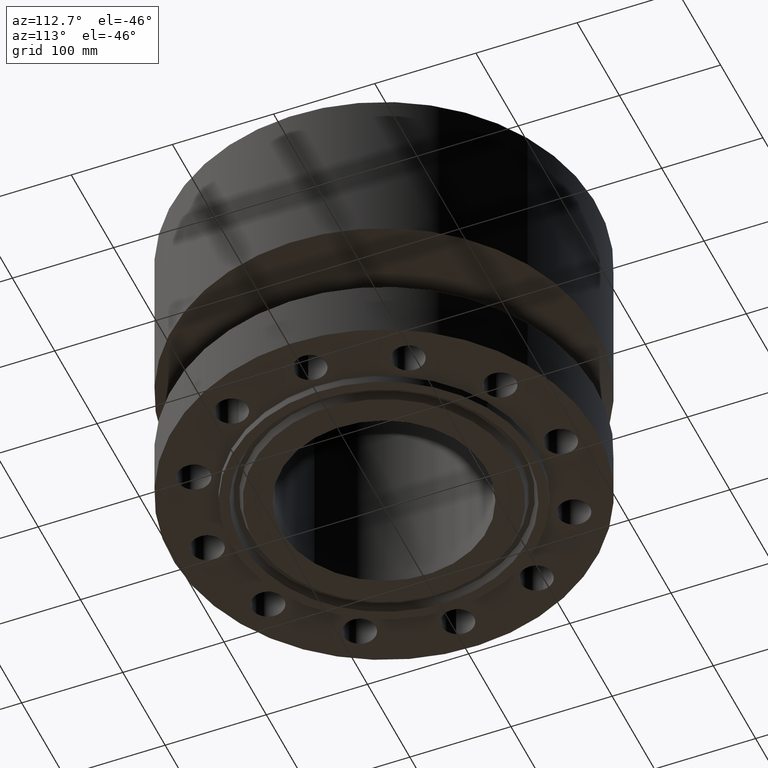
[diagram: clean part render]
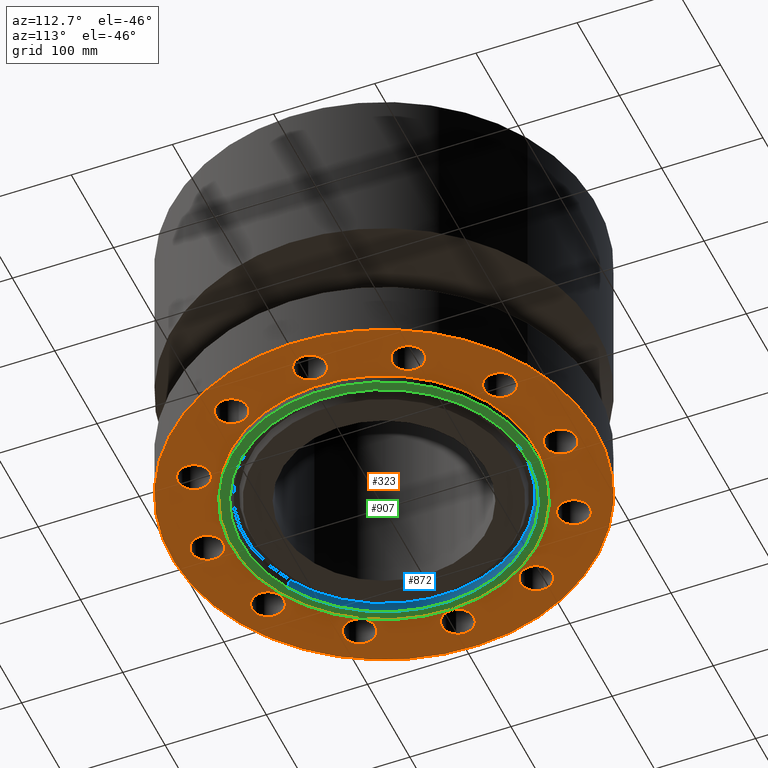
[diagram: same view with three faces highlighted in distinct colors, each labeled with its STEP entity id]
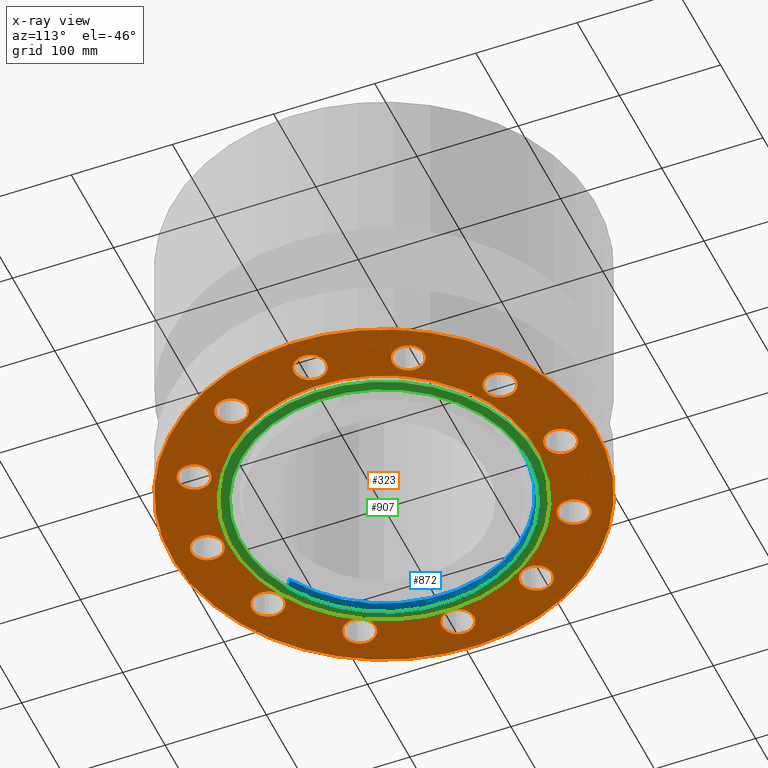
[diagram: x-ray of the same camera — body ghosted, the three highlighted faces saturated]
A machine part, auxiliary view with three faces highlighted in distinct colors.
The next image is the same camera in x-ray (body ghosted, the three faces saturated) — at least one of them is partly hidden behind the body in this view.
Their STEP definitions:

[orange] entity #323 — the highlighted planar face has unit normal (0, 0, -1).
#51=AXIS2_PLACEMENT_3D('Circle Axis2P3D',#49,#50,$) ;
#78=AXIS2_PLACEMENT_3D('Plane Axis2P3D',#75,#76,#77) ;
#82=AXIS2_PLACEMENT_3D('Circle Axis2P3D',#80,#81,$) ;
#91=AXIS2_PLACEMENT_3D('Circle Axis2P3D',#89,#90,$) ;
#100=AXIS2_PLACEMENT_3D('Circle Axis2P3D',#98,#99,$) ;
#109=AXIS2_PLACEMENT_3D('Circle Axis2P3D',#107,#108,$) ;
#118=AXIS2_PLACEMENT_3D('Circle Axis2P3D',#116,#117,$) ;
#127=AXIS2_PLACEMENT_3D('Circle Axis2P3D',#125,#126,$) ;
#136=AXIS2_PLACEMENT_3D('Circle Axis2P3D',#134,#135,$) ;
#145=AXIS2_PLACEMENT_3D('Circle Axis2P3D',#143,#144,$) ;
#154=AXIS2_PLACEMENT_3D('Circle Axis2P3D',#152,#153,$) ;
#163=AXIS2_PLACEMENT_3D('Circle Axis2P3D',#161,#162,$) ;
#172=AXIS2_PLACEMENT_3D('Circle Axis2P3D',#170,#171,$) ;
#181=AXIS2_PLACEMENT_3D('Circle Axis2P3D',#179,#180,$) ;
#190=AXIS2_PLACEMENT_3D('Circle Axis2P3D',#188,#189,$) ;
#199=AXIS2_PLACEMENT_3D('Circle Axis2P3D',#197,#198,$) ;
#208=AXIS2_PLACEMENT_3D('Circle Axis2P3D',#206,#207,$) ;
#217=AXIS2_PLACEMENT_3D('Circle Axis2P3D',#215,#216,$) ;
#226=AXIS2_PLACEMENT_3D('Circle Axis2P3D',#224,#225,$) ;
#235=AXIS2_PLACEMENT_3D('Circle Axis2P3D',#233,#234,$) ;
#244=AXIS2_PLACEMENT_3D('Circle Axis2P3D',#242,#243,$) ;
#253=AXIS2_PLACEMENT_3D('Circle Axis2P3D',#251,#252,$) ;
#262=AXIS2_PLACEMENT_3D('Circle Axis2P3D',#260,#261,$) ;
#271=AXIS2_PLACEMENT_3D('Circle Axis2P3D',#269,#270,$) ;
#280=AXIS2_PLACEMENT_3D('Circle Axis2P3D',#278,#279,$) ;
#289=AXIS2_PLACEMENT_3D('Circle Axis2P3D',#287,#288,$) ;
#298=AXIS2_PLACEMENT_3D('Circle Axis2P3D',#296,#297,$) ;
#307=AXIS2_PLACEMENT_3D('Circle Axis2P3D',#305,#306,$) ;
#316=AXIS2_PLACEMENT_3D('Circle Axis2P3D',#314,#315,$) ;
#46=CARTESIAN_POINT('Vertex',(7.42348910121,0.299640961629,2.2401153548E-016)) ;
#49=CARTESIAN_POINT('Axis2P3D Location',(6.87500000003,0.,0.)) ;
#53=CARTESIAN_POINT('Vertex',(6.32651089884,-0.299640961629,2.2401153548E-016)) ;
#75=CARTESIAN_POINT('Axis2P3D Location',(0.,5.23137906989,0.)) ;
#80=CARTESIAN_POINT('Axis2P3D Location',(0.,0.,0.)) ;
#84=CARTESIAN_POINT('Vertex',(-3.9552606935,-7.24005613562,1.1189649382E-015)) ;
#86=CARTESIAN_POINT('Vertex',(3.9552606935,7.24005613562,1.1189649382E-015)) ;
#89=CARTESIAN_POINT('Axis2P3D Location',(0.,0.,0.)) ;
#98=CARTESIAN_POINT('Axis2P3D Location',(6.87500000003,0.,0.)) ;
#107=CARTESIAN_POINT('Axis2P3D Location',(0.,0.,0.)) ;
#111=CARTESIAN_POINT('Vertex',(2.84658913547,5.21064646124,1.1189649382E-015)) ;
#113=CARTESIAN_POINT('Vertex',(-2.84658913547,-5.21064646124,1.1189649382E-015)) ;
#116=CARTESIAN_POINT('Axis2P3D Location',(0.,0.,0.)) ;
#125=CARTESIAN_POINT('Axis2P3D Location',(5.95392465104,-3.43750000001,0.)) ;
#129=CARTESIAN_POINT('Vertex',(6.57875062718,-3.45224786582,0.)) ;
#131=CARTESIAN_POINT('Vertex',(5.3290986749,-3.42275213421,0.)) ;
#134=CARTESIAN_POINT('Axis2P3D Location',(5.95392465104,-3.43750000001,0.)) ;
#143=CARTESIAN_POINT('Axis2P3D Location',(3.43750000001,-5.95392465104,0.)) ;
#147=CARTESIAN_POINT('Vertex',(3.97124123539,-6.27910966555,0.)) ;
#149=CARTESIAN_POINT('Vertex',(2.90375876464,-5.62873963653,0.)) ;
#152=CARTESIAN_POINT('Axis2P3D Location',(3.43750000001,-5.95392465104,0.)) ;
#161=CARTESIAN_POINT('Axis2P3D Location',(-6.99353086378E-016,-6.87500000003,0.)) ;
#165=CARTESIAN_POINT('Vertex',(0.299640961629,-7.42348910121,0.)) ;
#167=CARTESIAN_POINT('Vertex',(-0.299640961629,-6.32651089884,0.)) ;
#170=CARTESIAN_POINT('Axis2P3D Location',(-9.79094320929E-016,-6.87500000003,0.)) ;
#179=CARTESIAN_POINT('Axis2P3D Location',(-3.43750000001,-5.95392465104,0.)) ;
#183=CARTESIAN_POINT('Vertex',(-3.45224786582,-6.57875062718,0.)) ;
#185=CARTESIAN_POINT('Vertex',(-3.42275213421,-5.3290986749,0.)) ;
#188=CARTESIAN_POINT('Axis2P3D Location',(-3.43750000001,-5.95392465104,0.)) ;
#197=CARTESIAN_POINT('Axis2P3D Location',(-5.95392465104,-3.43750000001,0.)) ;
#201=CARTESIAN_POINT('Vertex',(-6.27910966555,-3.97124123539,0.)) ;
#203=CARTESIAN_POINT('Vertex',(-5.62873963653,-2.90375876464,0.)) ;
#206=CARTESIAN_POINT('Axis2P3D Location',(-5.95392465104,-3.43750000001,0.)) ;
#215=CARTESIAN_POINT('Axis2P3D Location',(-6.87500000003,-1.1189649382E-015,0.)) ;
#219=CARTESIAN_POINT('Vertex',(-7.42348910121,-0.299640961629,0.)) ;
#221=CARTESIAN_POINT('Vertex',(-6.32651089884,0.299640961629,0.)) ;
#224=CARTESIAN_POINT('Axis2P3D Location',(-6.87500000003,-1.1189649382E-015,0.)) ;
#233=CARTESIAN_POINT('Axis2P3D Location',(-5.95392465104,3.43750000001,0.)) ;
#237=CARTESIAN_POINT('Vertex',(-6.57875062718,3.45224786582,0.)) ;
#239=CARTESIAN_POINT('Vertex',(-5.3290986749,3.42275213421,0.)) ;
#242=CARTESIAN_POINT('Axis2P3D Location',(-5.95392465104,3.43750000001,0.)) ;
#251=CARTESIAN_POINT('Axis2P3D Location',(-3.43750000001,5.95392465104,0.)) ;
#255=CARTESIAN_POINT('Vertex',(-3.97124123539,6.27910966555,0.)) ;
#257=CARTESIAN_POINT('Vertex',(-2.90375876464,5.62873963653,0.)) ;
#260=CARTESIAN_POINT('Axis2P3D Location',(-3.43750000001,5.95392465104,0.)) ;
#269=CARTESIAN_POINT('Axis2P3D Location',(-1.60851209867E-015,6.87500000003,0.)) ;
#273=CARTESIAN_POINT('Vertex',(-0.299640961629,7.42348910121,0.)) ;
#275=CARTESIAN_POINT('Vertex',(0.299640961629,6.32651089884,0.)) ;
#278=CARTESIAN_POINT('Axis2P3D Location',(-1.04902962957E-015,6.87500000003,0.)) ;
#287=CARTESIAN_POINT('Axis2P3D Location',(3.43750000001,5.95392465104,0.)) ;
#291=CARTESIAN_POINT('Vertex',(3.45224786582,6.57875062718,0.)) ;
#293=CARTESIAN_POINT('Vertex',(3.42275213421,5.3290986749,0.)) ;
#296=CARTESIAN_POINT('Axis2P3D Location',(3.43750000001,5.95392465104,0.)) ;
#305=CARTESIAN_POINT('Axis2P3D Location',(5.95392465104,3.43750000001,0.)) ;
#309=CARTESIAN_POINT('Vertex',(6.27910966555,3.97124123539,0.)) ;
#311=CARTESIAN_POINT('Vertex',(5.62873963653,2.90375876464,0.)) ;
#314=CARTESIAN_POINT('Axis2P3D Location',(5.95392465104,3.43750000001,0.)) ;
#50=DIRECTION('Axis2P3D Direction',(0.,-0.,0.0393700787402)) ;
#76=DIRECTION('Axis2P3D Direction',(0.,0.,-0.0393700787402)) ;
#77=DIRECTION('Axis2P3D XDirection',(0.0393700787402,0.,0.)) ;
#81=DIRECTION('Axis2P3D Direction',(0.,0.,-0.0393700787402)) ;
#90=DIRECTION('Axis2P3D Direction',(0.,0.,-0.0393700787402)) ;
#99=DIRECTION('Axis2P3D Direction',(0.,0.,-0.0393700787402)) ;
#108=DIRECTION('Axis2P3D Direction',(0.,0.,-0.0393700787402)) ;
#117=DIRECTION('Axis2P3D Direction',(0.,0.,-0.0393700787402)) ;
#126=DIRECTION('Axis2P3D Direction',(0.,0.,-0.0393700787402)) ;
#135=DIRECTION('Axis2P3D Direction',(0.,0.,-0.0393700787402)) ;
#144=DIRECTION('Axis2P3D Direction',(0.,0.,-0.0393700787402)) ;
#153=DIRECTION('Axis2P3D Direction',(0.,0.,-0.0393700787402)) ;
#162=DIRECTION('Axis2P3D Direction',(0.,0.,-0.0393700787402)) ;
#171=DIRECTION('Axis2P3D Direction',(0.,0.,-0.0393700787402)) ;
#180=DIRECTION('Axis2P3D Direction',(0.,0.,-0.0393700787402)) ;
#189=DIRECTION('Axis2P3D Direction',(0.,0.,-0.0393700787402)) ;
#198=DIRECTION('Axis2P3D Direction',(0.,0.,-0.0393700787402)) ;
#207=DIRECTION('Axis2P3D Direction',(0.,0.,-0.0393700787402)) ;
#216=DIRECTION('Axis2P3D Direction',(0.,0.,-0.0393700787402)) ;
#225=DIRECTION('Axis2P3D Direction',(0.,0.,-0.0393700787402)) ;
#234=DIRECTION('Axis2P3D Direction',(0.,0.,-0.0393700787402)) ;
#243=DIRECTION('Axis2P3D Direction',(0.,0.,-0.0393700787402)) ;
#252=DIRECTION('Axis2P3D Direction',(0.,0.,-0.0393700787402)) ;
#261=DIRECTION('Axis2P3D Direction',(0.,0.,-0.0393700787402)) ;
#270=DIRECTION('Axis2P3D Direction',(0.,0.,-0.0393700787402)) ;
#279=DIRECTION('Axis2P3D Direction',(0.,0.,-0.0393700787402)) ;
#288=DIRECTION('Axis2P3D Direction',(0.,0.,-0.0393700787402)) ;
#297=DIRECTION('Axis2P3D Direction',(0.,0.,-0.0393700787402)) ;
#306=DIRECTION('Axis2P3D Direction',(0.,0.,-0.0393700787402)) ;
#315=DIRECTION('Axis2P3D Direction',(0.,0.,-0.0393700787402)) ;
#95=ORIENTED_EDGE('',*,*,#88,.T.) ;
#96=ORIENTED_EDGE('',*,*,#93,.T.) ;
#104=ORIENTED_EDGE('',*,*,#102,.F.) ;
#105=ORIENTED_EDGE('',*,*,#55,.F.) ;
#122=ORIENTED_EDGE('',*,*,#115,.F.) ;
#123=ORIENTED_EDGE('',*,*,#120,.F.) ;
#140=ORIENTED_EDGE('',*,*,#133,.F.) ;
#141=ORIENTED_EDGE('',*,*,#138,.F.) ;
#158=ORIENTED_EDGE('',*,*,#151,.F.) ;
#159=ORIENTED_EDGE('',*,*,#156,.F.) ;
#176=ORIENTED_EDGE('',*,*,#169,.F.) ;
#177=ORIENTED_EDGE('',*,*,#174,.F.) ;
#194=ORIENTED_EDGE('',*,*,#187,.F.) ;
#195=ORIENTED_EDGE('',*,*,#192,.F.) ;
#212=ORIENTED_EDGE('',*,*,#205,.F.) ;
#213=ORIENTED_EDGE('',*,*,#210,.F.) ;
#230=ORIENTED_EDGE('',*,*,#223,.F.) ;
#231=ORIENTED_EDGE('',*,*,#228,.F.) ;
#248=ORIENTED_EDGE('',*,*,#241,.F.) ;
#249=ORIENTED_EDGE('',*,*,#246,.F.) ;
#266=ORIENTED_EDGE('',*,*,#259,.F.) ;
#267=ORIENTED_EDGE('',*,*,#264,.F.) ;
#284=ORIENTED_EDGE('',*,*,#277,.F.) ;
#285=ORIENTED_EDGE('',*,*,#282,.F.) ;
#302=ORIENTED_EDGE('',*,*,#295,.F.) ;
#303=ORIENTED_EDGE('',*,*,#300,.F.) ;
#320=ORIENTED_EDGE('',*,*,#313,.F.) ;
#321=ORIENTED_EDGE('',*,*,#318,.F.) ;
#106=FACE_BOUND('',#103,.T.) ;
#124=FACE_BOUND('',#121,.T.) ;
#142=FACE_BOUND('',#139,.T.) ;
#160=FACE_BOUND('',#157,.T.) ;
#178=FACE_BOUND('',#175,.T.) ;
#196=FACE_BOUND('',#193,.T.) ;
#214=FACE_BOUND('',#211,.T.) ;
#232=FACE_BOUND('',#229,.T.) ;
#250=FACE_BOUND('',#247,.T.) ;
#268=FACE_BOUND('',#265,.T.) ;
#286=FACE_BOUND('',#283,.T.) ;
#304=FACE_BOUND('',#301,.T.) ;
#322=FACE_BOUND('',#319,.T.) ;
#323=ADVANCED_FACE('PartBody',(#97,#106,#124,#142,#160,#178,#196,#214,#232,#250,#268,#286,#304,#322),#79,.T.) ;
#52=CIRCLE('generated circle',#51,0.625000000002) ;
#83=CIRCLE('generated circle',#82,8.25000000003) ;
#92=CIRCLE('generated circle',#91,8.25000000003) ;
#101=CIRCLE('generated circle',#100,0.625000000002) ;
#110=CIRCLE('generated circle',#109,5.93750000002) ;
#119=CIRCLE('generated circle',#118,5.93750000002) ;
#128=CIRCLE('generated circle',#127,0.625000000002) ;
#137=CIRCLE('generated circle',#136,0.625000000002) ;
#146=CIRCLE('generated circle',#145,0.625000000002) ;
#155=CIRCLE('generated circle',#154,0.625000000002) ;
#164=CIRCLE('generated circle',#163,0.625000000002) ;
#173=CIRCLE('generated circle',#172,0.625000000003) ;
#182=CIRCLE('generated circle',#181,0.625000000002) ;
#191=CIRCLE('generated circle',#190,0.625000000002) ;
#200=CIRCLE('generated circle',#199,0.625000000002) ;
#209=CIRCLE('generated circle',#208,0.625000000002) ;
#218=CIRCLE('generated circle',#217,0.625000000002) ;
#227=CIRCLE('generated circle',#226,0.625000000002) ;
#236=CIRCLE('generated circle',#235,0.625000000002) ;
#245=CIRCLE('generated circle',#244,0.625000000002) ;
#254=CIRCLE('generated circle',#253,0.625000000003) ;
#263=CIRCLE('generated circle',#262,0.625000000003) ;
#272=CIRCLE('generated circle',#271,0.625000000002) ;
#281=CIRCLE('generated circle',#280,0.625000000003) ;
#290=CIRCLE('generated circle',#289,0.625000000002) ;
#299=CIRCLE('generated circle',#298,0.625000000002) ;
#308=CIRCLE('generated circle',#307,0.625000000003) ;
#317=CIRCLE('generated circle',#316,0.625000000003) ;
#55=EDGE_CURVE('',#47,#54,#52,.F.) ;
#88=EDGE_CURVE('',#85,#87,#83,.T.) ;
#93=EDGE_CURVE('',#87,#85,#92,.T.) ;
#102=EDGE_CURVE('',#54,#47,#101,.T.) ;
#115=EDGE_CURVE('',#112,#114,#110,.T.) ;
#120=EDGE_CURVE('',#114,#112,#119,.T.) ;
#133=EDGE_CURVE('',#130,#132,#128,.T.) ;
#138=EDGE_CURVE('',#132,#130,#137,.T.) ;
#151=EDGE_CURVE('',#148,#150,#146,.T.) ;
#156=EDGE_CURVE('',#150,#148,#155,.T.) ;
#169=EDGE_CURVE('',#166,#168,#164,.T.) ;
#174=EDGE_CURVE('',#168,#166,#173,.T.) ;
#187=EDGE_CURVE('',#184,#186,#182,.T.) ;
#192=EDGE_CURVE('',#186,#184,#191,.T.) ;
#205=EDGE_CURVE('',#202,#204,#200,.T.) ;
#210=EDGE_CURVE('',#204,#202,#209,.T.) ;
#223=EDGE_CURVE('',#220,#222,#218,.T.) ;
#228=EDGE_CURVE('',#222,#220,#227,.T.) ;
#241=EDGE_CURVE('',#238,#240,#236,.T.) ;
#246=EDGE_CURVE('',#240,#238,#245,.T.) ;
#259=EDGE_CURVE('',#256,#258,#254,.T.) ;
#264=EDGE_CURVE('',#258,#256,#263,.T.) ;
#277=EDGE_CURVE('',#274,#276,#272,.T.) ;
#282=EDGE_CURVE('',#276,#274,#281,.T.) ;
#295=EDGE_CURVE('',#292,#294,#290,.T.) ;
#300=EDGE_CURVE('',#294,#292,#299,.T.) ;
#313=EDGE_CURVE('',#310,#312,#308,.T.) ;
#318=EDGE_CURVE('',#312,#310,#317,.T.) ;
#94=EDGE_LOOP('',(#95,#96)) ;
#103=EDGE_LOOP('',(#104,#105)) ;
#121=EDGE_LOOP('',(#122,#123)) ;
#139=EDGE_LOOP('',(#140,#141)) ;
#157=EDGE_LOOP('',(#158,#159)) ;
#175=EDGE_LOOP('',(#176,#177)) ;
#193=EDGE_LOOP('',(#194,#195)) ;
#211=EDGE_LOOP('',(#212,#213)) ;
#229=EDGE_LOOP('',(#230,#231)) ;
#247=EDGE_LOOP('',(#248,#249)) ;
#265=EDGE_LOOP('',(#266,#267)) ;
#283=EDGE_LOOP('',(#284,#285)) ;
#301=EDGE_LOOP('',(#302,#303)) ;
#319=EDGE_LOOP('',(#320,#321)) ;
#97=FACE_OUTER_BOUND('',#94,.T.) ;
#79=PLANE('',#78) ;
#47=VERTEX_POINT('',#46) ;
#54=VERTEX_POINT('',#53) ;
#85=VERTEX_POINT('',#84) ;
#87=VERTEX_POINT('',#86) ;
#112=VERTEX_POINT('',#111) ;
#114=VERTEX_POINT('',#113) ;
#130=VERTEX_POINT('',#129) ;
#132=VERTEX_POINT('',#131) ;
#148=VERTEX_POINT('',#147) ;
#150=VERTEX_POINT('',#149) ;
#166=VERTEX_POINT('',#165) ;
#168=VERTEX_POINT('',#167) ;
#184=VERTEX_POINT('',#183) ;
#186=VERTEX_POINT('',#185) ;
#202=VERTEX_POINT('',#201) ;
#204=VERTEX_POINT('',#203) ;
#220=VERTEX_POINT('',#219) ;
#222=VERTEX_POINT('',#221) ;
#238=VERTEX_POINT('',#237) ;
#240=VERTEX_POINT('',#239) ;
#256=VERTEX_POINT('',#255) ;
#258=VERTEX_POINT('',#257) ;
#274=VERTEX_POINT('',#273) ;
#276=VERTEX_POINT('',#275) ;
#292=VERTEX_POINT('',#291) ;
#294=VERTEX_POINT('',#293) ;
#310=VERTEX_POINT('',#309) ;
#312=VERTEX_POINT('',#311) ;

[blue] entity #872 — the highlighted conical surface has half-angle 23 deg.
#813=AXIS2_PLACEMENT_3D('Circle Axis2P3D',#811,#812,$) ;
#845=AXIS2_PLACEMENT_3D('Cone Axis2P3D',#842,#843,#844) ;
#856=AXIS2_PLACEMENT_3D('Circle Axis2P3D',#854,#855,$) ;
#808=CARTESIAN_POINT('Vertex',(-2.59952033905,-4.75839006298,-0.0188873350169)) ;
#811=CARTESIAN_POINT('Axis2P3D Location',(0.,0.,-0.0188873350169)) ;
#815=CARTESIAN_POINT('Vertex',(2.59952033905,4.75839006298,-0.0188873350169)) ;
#842=CARTESIAN_POINT('Axis2P3D Location',(0.,0.,-0.0188873350169)) ;
#847=CARTESIAN_POINT('Line Origine',(-2.62944690085,-4.8131702669,-0.165943667509)) ;
#851=CARTESIAN_POINT('Vertex',(-2.65937346265,-4.86795047083,-0.313000000001)) ;
#854=CARTESIAN_POINT('Axis2P3D Location',(0.,0.,-0.313000000001)) ;
#858=CARTESIAN_POINT('Vertex',(2.65937346265,4.86795047083,-0.313000000001)) ;
#861=CARTESIAN_POINT('Line Origine',(2.62944690085,4.8131702669,-0.165943667509)) ;
#812=DIRECTION('Axis2P3D Direction',(0.,0.,-0.0393700787402)) ;
#843=DIRECTION('Axis2P3D Direction',(0.,0.,-0.0393700787402)) ;
#844=DIRECTION('Axis2P3D XDirection',(0.0188750212049,0.0345504945626,0.)) ;
#848=DIRECTION('Vector Direction',(-0.00737505833565,-0.0134999537303,-0.0362403485611)) ;
#855=DIRECTION('Axis2P3D Direction',(0.,0.,-0.0393700787402)) ;
#862=DIRECTION('Vector Direction',(0.00737505833565,0.0134999537303,-0.0362403485611)) ;
#849=VECTOR('Line Direction',#848,0.0393700787402) ;
#863=VECTOR('Line Direction',#862,0.0393700787402) ;
#867=ORIENTED_EDGE('',*,*,#817,.F.) ;
#868=ORIENTED_EDGE('',*,*,#853,.T.) ;
#869=ORIENTED_EDGE('',*,*,#860,.T.) ;
#870=ORIENTED_EDGE('',*,*,#865,.F.) ;
#872=ADVANCED_FACE('PartBody',(#871),#846,.F.) ;
#814=CIRCLE('generated circle',#813,5.42215658061) ;
#857=CIRCLE('generated circle',#856,5.54700000002) ;
#846=CONICAL_SURFACE('Cone',#845,5.42215658061,0.401425727959) ;
#817=EDGE_CURVE('',#809,#816,#814,.T.) ;
#853=EDGE_CURVE('',#809,#852,#850,.T.) ;
#860=EDGE_CURVE('',#852,#859,#857,.T.) ;
#865=EDGE_CURVE('',#816,#859,#864,.T.) ;
#866=EDGE_LOOP('',(#867,#868,#869,#870)) ;
#871=FACE_OUTER_BOUND('',#866,.T.) ;
#850=LINE('Line',#847,#849) ;
#864=LINE('Line',#861,#863) ;
#809=VERTEX_POINT('',#808) ;
#816=VERTEX_POINT('',#815) ;
#852=VERTEX_POINT('',#851) ;
#859=VERTEX_POINT('',#858) ;

[green] entity #907 — the highlighted planar face has unit normal (0, 0, -1).
#665=AXIS2_PLACEMENT_3D('Plane Axis2P3D',#662,#663,#664) ;
#856=AXIS2_PLACEMENT_3D('Circle Axis2P3D',#854,#855,$) ;
#875=AXIS2_PLACEMENT_3D('Circle Axis2P3D',#873,#874,$) ;
#887=AXIS2_PLACEMENT_3D('Circle Axis2P3D',#885,#886,$) ;
#896=AXIS2_PLACEMENT_3D('Circle Axis2P3D',#894,#895,$) ;
#662=CARTESIAN_POINT('Axis2P3D Location',(0.,4.00000000002,-0.313000000001)) ;
#851=CARTESIAN_POINT('Vertex',(-2.65937346265,-4.86795047083,-0.313000000001)) ;
#854=CARTESIAN_POINT('Axis2P3D Location',(0.,0.,-0.313000000001)) ;
#858=CARTESIAN_POINT('Vertex',(2.65937346265,4.86795047083,-0.313000000001)) ;
#873=CARTESIAN_POINT('Axis2P3D Location',(0.,0.,-0.313000000001)) ;
#885=CARTESIAN_POINT('Axis2P3D Location',(0.,0.,-0.313000000001)) ;
#889=CARTESIAN_POINT('Vertex',(-2.84658913547,-5.21064646124,-0.313000000001)) ;
#891=CARTESIAN_POINT('Vertex',(2.84658913547,5.21064646124,-0.313000000001)) ;
#894=CARTESIAN_POINT('Axis2P3D Location',(0.,0.,-0.313000000001)) ;
#663=DIRECTION('Axis2P3D Direction',(0.,0.,-0.0393700787402)) ;
#664=DIRECTION('Axis2P3D XDirection',(0.0393700787402,0.,0.)) ;
#855=DIRECTION('Axis2P3D Direction',(0.,0.,-0.0393700787402)) ;
#874=DIRECTION('Axis2P3D Direction',(0.,0.,-0.0393700787402)) ;
#886=DIRECTION('Axis2P3D Direction',(0.,0.,-0.0393700787402)) ;
#895=DIRECTION('Axis2P3D Direction',(0.,0.,-0.0393700787402)) ;
#900=ORIENTED_EDGE('',*,*,#893,.T.) ;
#901=ORIENTED_EDGE('',*,*,#898,.T.) ;
#904=ORIENTED_EDGE('',*,*,#877,.F.) ;
#905=ORIENTED_EDGE('',*,*,#860,.F.) ;
#906=FACE_BOUND('',#903,.T.) ;
#907=ADVANCED_FACE('PartBody',(#902,#906),#666,.T.) ;
#857=CIRCLE('generated circle',#856,5.54700000002) ;
#876=CIRCLE('generated circle',#875,5.54700000002) ;
#888=CIRCLE('generated circle',#887,5.93750000002) ;
#897=CIRCLE('generated circle',#896,5.93750000002) ;
#860=EDGE_CURVE('',#852,#859,#857,.T.) ;
#877=EDGE_CURVE('',#859,#852,#876,.T.) ;
#893=EDGE_CURVE('',#890,#892,#888,.T.) ;
#898=EDGE_CURVE('',#892,#890,#897,.T.) ;
#899=EDGE_LOOP('',(#900,#901)) ;
#903=EDGE_LOOP('',(#904,#905)) ;
#902=FACE_OUTER_BOUND('',#899,.T.) ;
#666=PLANE('',#665) ;
#852=VERTEX_POINT('',#851) ;
#859=VERTEX_POINT('',#858) ;
#890=VERTEX_POINT('',#889) ;
#892=VERTEX_POINT('',#891) ;